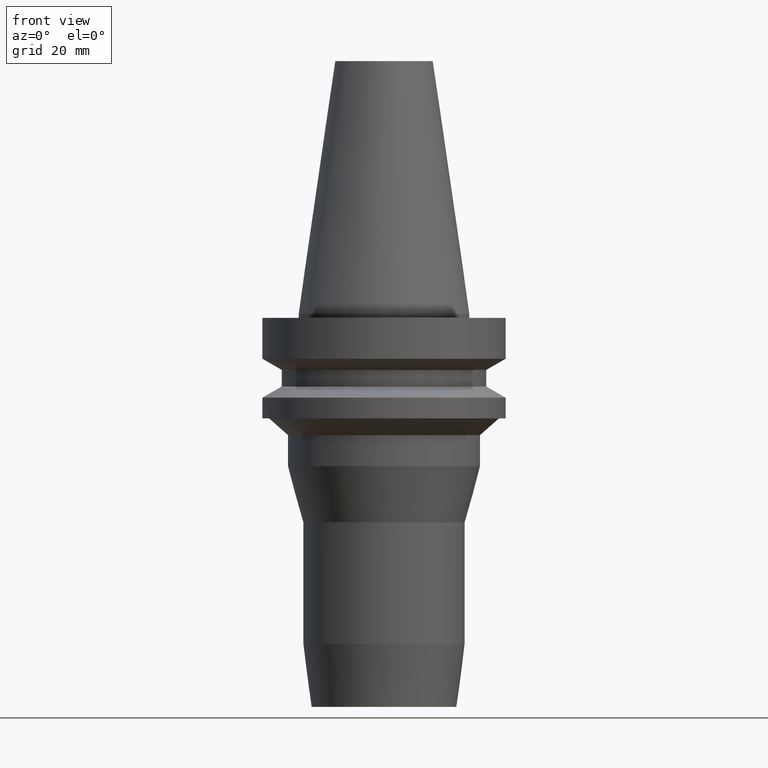
[diagram: clean part render]
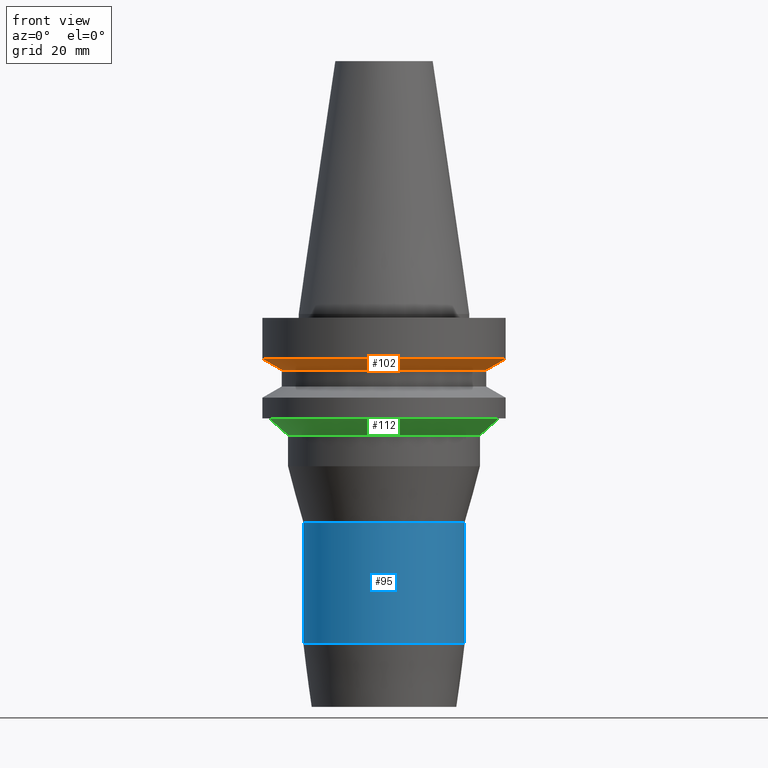
[diagram: same view with three faces highlighted in distinct colors, each labeled with its STEP entity id]
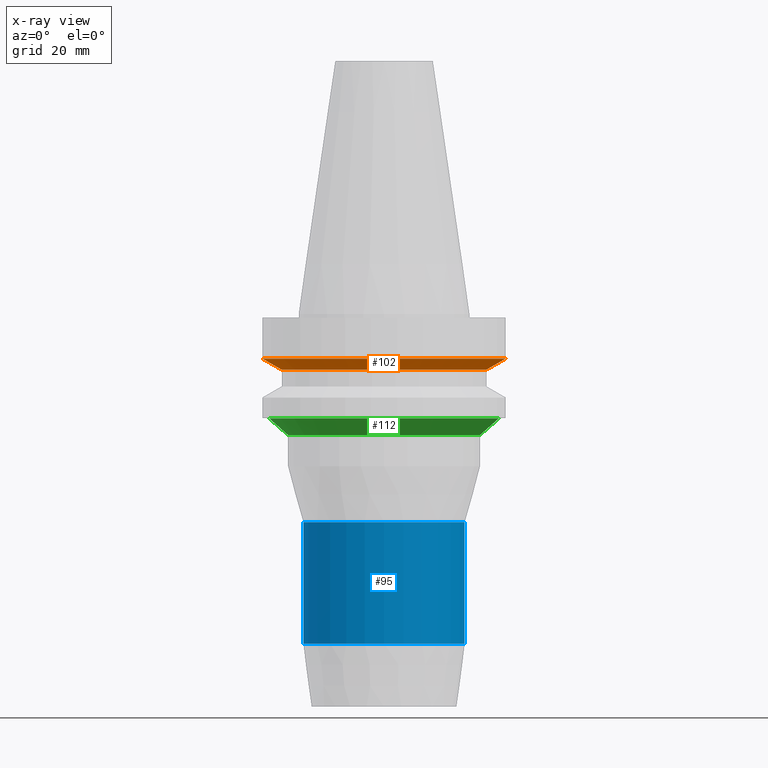
[diagram: x-ray of the same camera — body ghosted, the three highlighted faces saturated]
A machine part, front view with three faces highlighted in distinct colors.
The next image is the same camera in x-ray (body ghosted, the three faces saturated) — at least one of them is partly hidden behind the body in this view.
Their STEP definitions:

[orange] entity #102 — the highlighted conical surface has half-angle 60 deg.
#102=ADVANCED_FACE('Unnamed[1]',(#226,#227),#228,.T.);
#117=EDGE_CURVE('Unnamed[1]',#248,#248,#249,.T.);
#125=EDGE_CURVE('Unnamed[1]',#261,#261,#262,.T.);
#226=FACE_BOUND('',#377,.T.);
#227=FACE_BOUND('',#378,.T.);
#228=CONICAL_SURFACE('',#379,28.9999999999999,1.04719755119657);
#248=VERTEX_POINT('',#404);
#249=CIRCLE('',#405,26.4999999999994);
#261=VERTEX_POINT('',#420);
#262=CIRCLE('',#421,31.5000000000003);
#377=EDGE_LOOP('',(#524));
#378=EDGE_LOOP('',(#525));
#379=AXIS2_PLACEMENT_3D('',#526,#527,#528);
#404=CARTESIAN_POINT('',(8.8494551369045E-016,26.4999999999995,-14.4522569986152));
#405=AXIS2_PLACEMENT_3D('',#547,#548,#549);
#420=CARTESIAN_POINT('',(7.08182973902924E-016,31.5000000000004,-11.5655056526664));
#421=AXIS2_PLACEMENT_3D('',#562,#563,#564);
#524=ORIENTED_EDGE('',*,*,#117,.F.);
#525=ORIENTED_EDGE('',*,*,#125,.T.);
#526=CARTESIAN_POINT('',(7.96564243796687E-016,3.36539160057537E-014,-13.0088813256408));
#527=DIRECTION('',(-6.12323399573677E-017,5.47979376128761E-016,1.0));
#528=DIRECTION('',(2.8726906717972E-032,1.0,-5.47979376128761E-016));
#547=CARTESIAN_POINT('',(8.84945513690449E-016,3.28629759049578E-014,-14.4522569986152));
#548=DIRECTION('',(6.12323399573677E-017,-5.47979376128741E-016,-1.0));
#549=DIRECTION('',(2.87269067179735E-032,1.0,-5.47979376128741E-016));
#562=CARTESIAN_POINT('',(7.08182973902923E-016,3.44448561065497E-014,-11.5655056526663));
#563=DIRECTION('',(6.12323399573677E-017,-5.47979376128778E-016,-1.0));
#564=DIRECTION('',(2.87269067179764E-032,1.0,-5.47979376128777E-016));

[blue] entity #95 — the highlighted cylindrical surface (bore or boss wall) has radius 21 mm, axis along (0, -0, -1).
#95=ADVANCED_FACE('Unnamed[1]',(#215,#216),#217,.T.);
#127=EDGE_CURVE('Unnamed[1]',#264,#264,#265,.T.);
#135=EDGE_CURVE('Unnamed[1]',#276,#276,#277,.T.);
#215=FACE_BOUND('',#363,.T.);
#216=FACE_BOUND('',#364,.T.);
#217=CYLINDRICAL_SURFACE('',#365,21.0000000000002);
#264=VERTEX_POINT('',#424);
#265=CIRCLE('',#425,21.0000000000001);
#276=VERTEX_POINT('',#439);
#277=CIRCLE('',#440,21.0000000000003);
#363=EDGE_LOOP('',(#512));
#364=EDGE_LOOP('',(#513));
#365=AXIS2_PLACEMENT_3D('',#514,#515,#516);
#424=CARTESIAN_POINT('',(3.29797383010386E-015,21.0000000000001,-53.8600000000006));
#425=AXIS2_PLACEMENT_3D('',#565,#566,#567);
#439=CARTESIAN_POINT('',(5.21914953239753E-015,21.0000000000003,-85.2351802337018));
#440=AXIS2_PLACEMENT_3D('',#579,#580,#581);
#512=ORIENTED_EDGE('',*,*,#135,.F.);
#513=ORIENTED_EDGE('',*,*,#127,.T.);
#514=CARTESIAN_POINT('',(4.2585616812507E-015,2.67186963522034E-015,-69.5475901168512));
#515=DIRECTION('',(6.12323399573677E-017,-5.47979376128727E-016,-1.0));
#516=DIRECTION('',(2.8726906717975E-032,1.0,-5.47979376128727E-016));
#565=CARTESIAN_POINT('',(3.29797383010386E-015,1.12683454804159E-014,-53.8600000000006));
#566=DIRECTION('',(6.12323399573677E-017,-5.47979376128729E-016,-1.0));
#567=DIRECTION('',(2.87269067179708E-032,1.0,-5.47979376128729E-016));
#579=CARTESIAN_POINT('',(5.21914953239753E-015,-5.92460620997522E-015,-85.2351802337018));
#580=DIRECTION('',(6.12323399573677E-017,-5.47979376128802E-016,-1.0));
#581=DIRECTION('',(2.87269067179791E-032,1.0,-5.47979376128802E-016));

[green] entity #112 — the highlighted conical surface has half-angle 47.434 deg.
#75=EDGE_CURVE('Unnamed[1]',#183,#183,#184,.T.);
#104=EDGE_CURVE('Unnamed[1]',#230,#230,#231,.T.);
#112=ADVANCED_FACE('Unnamed[1]',(#240,#241),#242,.T.);
#183=VERTEX_POINT('',#324);
#184=CIRCLE('',#325,25.0);
#230=VERTEX_POINT('',#382);
#231=CIRCLE('',#383,29.7145262827772);
#240=FACE_BOUND('',#394,.T.);
#241=FACE_BOUND('',#395,.T.);
#242=CONICAL_SURFACE('',#396,27.3572631413886,0.827872767934572);
#324=CARTESIAN_POINT('',(1.91841698853012E-015,25.0,-31.3301270189216));
#325=AXIS2_PLACEMENT_3D('',#475,#476,#477);
#382=CARTESIAN_POINT('',(1.65327317884891E-015,29.7145262827772,-26.9999999999998));
#383=AXIS2_PLACEMENT_3D('',#529,#530,#531);
#394=EDGE_LOOP('',(#537));
#395=EDGE_LOOP('',(#538));
#396=AXIS2_PLACEMENT_3D('',#539,#540,#541);
#475=CARTESIAN_POINT('',(1.91841698853012E-015,2.36142512208479E-014,-31.3301270189216));
#476=DIRECTION('',(6.12323399573677E-017,-5.47979376128813E-016,-1.0));
#477=DIRECTION('',(2.8726906717968E-032,1.0,-5.47979376128813E-016));
#529=CARTESIAN_POINT('',(1.65327317884891E-015,2.5987071523235E-014,-26.9999999999998));
#530=DIRECTION('',(6.12323399573677E-017,-5.47979376128763E-016,-1.0));
#531=DIRECTION('',(2.87269067179733E-032,1.0,-5.47979376128763E-016));
#537=ORIENTED_EDGE('',*,*,#75,.F.);
#538=ORIENTED_EDGE('',*,*,#104,.T.);
#539=CARTESIAN_POINT('',(1.78584508368951E-015,2.48006613720414E-014,-29.1650635094607));
#540=DIRECTION('',(-6.12323399573677E-017,5.47979376128727E-016,1.0));
#541=DIRECTION('',(2.87269067179709E-032,1.0,-5.47979376128727E-016));